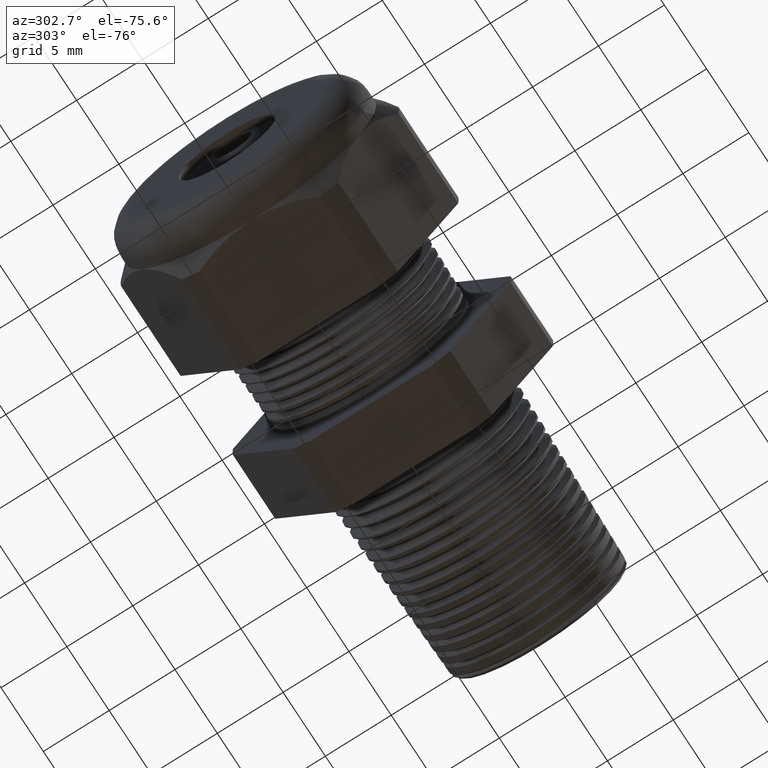
[diagram: clean part render]
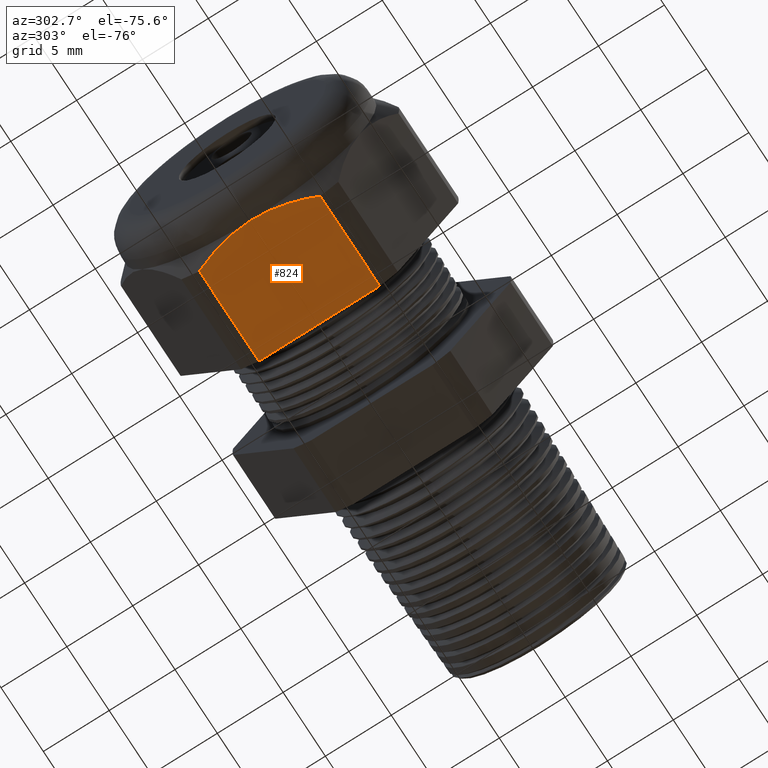
[diagram: same view with one face highlighted and labeled with its STEP entity id]
A machine part, auxiliary view. The second image highlights one B-rep face of the part: STEP entity #824.
In plain terms, the highlighted planar face has unit normal (0, 0, -1).
Its self-contained STEP definition (entity closure, byte-faithful):
#368 = VERTEX_POINT ( 'NONE', #2421 ) ;
#804 = VERTEX_POINT ( 'NONE', #3254 ) ;
#805 = ORIENTED_EDGE ( 'NONE', *, *, #806, .F. ) ;
#806 = EDGE_CURVE ( 'NONE', #807, #804, #3253, .T. ) ;
#807 = VERTEX_POINT ( 'NONE', #3249 ) ;
#808 = ORIENTED_EDGE ( 'NONE', *, *, #809, .F. ) ;
#809 = EDGE_CURVE ( 'NONE', #821, #807, #3312, .T. ) ;
#818 = VERTEX_POINT ( 'NONE', #3297 ) ;
#820 = EDGE_CURVE ( 'NONE', #821, #818, #3296, .T. ) ;
#821 = VERTEX_POINT ( 'NONE', #3292 ) ;
#824 = ADVANCED_FACE ( 'NONE', ( #3291 ), #3285, .T. ) ;
#825 = EDGE_LOOP ( 'NONE', ( #827, #828, #885, #805, #808 ) ) ;
#827 = ORIENTED_EDGE ( 'NONE', *, *, #820, .T. ) ;
#828 = ORIENTED_EDGE ( 'NONE', *, *, #884, .T. ) ;
#884 = EDGE_CURVE ( 'NONE', #818, #368, #3455, .T. ) ;
#885 = ORIENTED_EDGE ( 'NONE', *, *, #886, .T. ) ;
#886 = EDGE_CURVE ( 'NONE', #368, #804, #3448, .T. ) ;
#2421 = CARTESIAN_POINT ( 'NONE',  ( -1.069763779527559200, 0.0000000000000000000, -0.3750000000000001100 ) ) ;
#3249 = CARTESIAN_POINT ( 'NONE',  ( -0.7508661417322833900, 0.1806628420566884800, -0.3750000000000001100 ) ) ;
#3250 = DIRECTION ( 'NONE',  ( -1.000000000000000000, 0.0000000000000000000, 0.0000000000000000000 ) ) ;
#3251 = VECTOR ( 'NONE', #3250, 39.37007874015748100 ) ;
#3252 = CARTESIAN_POINT ( 'NONE',  ( 0.2800000000000000300, 0.1806628420566884800, -0.3750000000000001100 ) ) ;
#3253 = LINE ( 'NONE', #3252, #3251 ) ;
#3254 = CARTESIAN_POINT ( 'NONE',  ( -1.028513779527559200, 0.1806628420566884200, -0.3750000000000000600 ) ) ;
#3282 = DIRECTION ( 'NONE',  ( 0.0000000000000000000, 0.0000000000000000000, -1.000000000000000000 ) ) ;
#3283 = CARTESIAN_POINT ( 'NONE',  ( 0.2800000000000000300, 0.1806628420566883900, -0.3750000000000001100 ) ) ;
#3284 = AXIS2_PLACEMENT_3D ( 'NONE', #3283, #3282, #3340 ) ;
#3285 = PLANE ( 'NONE',  #3284 ) ;
#3291 = FACE_OUTER_BOUND ( 'NONE', #825, .T. ) ;
#3292 = CARTESIAN_POINT ( 'NONE',  ( -0.7508661417322833900, -0.1806628420566883900, -0.3750000000000001100 ) ) ;
#3293 = DIRECTION ( 'NONE',  ( -1.000000000000000000, 0.0000000000000000000, 0.0000000000000000000 ) ) ;
#3294 = VECTOR ( 'NONE', #3293, 39.37007874015748100 ) ;
#3295 = CARTESIAN_POINT ( 'NONE',  ( 0.2800000000000000300, -0.1806628420566883900, -0.3750000000000001100 ) ) ;
#3296 = LINE ( 'NONE', #3295, #3294 ) ;
#3297 = CARTESIAN_POINT ( 'NONE',  ( -1.028513779527559200, -0.1806628420566883700, -0.3750000000000001100 ) ) ;
#3309 = DIRECTION ( 'NONE',  ( 0.0000000000000000000, 1.000000000000000000, 0.0000000000000000000 ) ) ;
#3310 = VECTOR ( 'NONE', #3309, 39.37007874015748100 ) ;
#3311 = CARTESIAN_POINT ( 'NONE',  ( -0.7508661417322833900, 0.2999999999999999900, -0.3750000000000001100 ) ) ;
#3312 = LINE ( 'NONE', #3311, #3310 ) ;
#3340 = DIRECTION ( 'NONE',  ( -1.000000000000000000, 0.0000000000000000000, 0.0000000000000000000 ) ) ;
#3436 = CARTESIAN_POINT ( 'NONE',  ( -1.028513779527559200, 0.1806628420566884200, -0.3750000000000000600 ) ) ;
#3437 = CARTESIAN_POINT ( 'NONE',  ( -1.040859887633264900, 0.1522172168218788600, -0.3750000000000000600 ) ) ;
#3438 = CARTESIAN_POINT ( 'NONE',  ( -1.051355067212263800, 0.1224785947535363100, -0.3750000000000001100 ) ) ;
#3439 = CARTESIAN_POINT ( 'NONE',  ( -1.062160678549065200, 0.07729185397029268700, -0.3750000000000001100 ) ) ;
#3440 = CARTESIAN_POINT ( 'NONE',  ( -1.064967165678734700, 0.06207756443688126900, -0.3750000000000001100 ) ) ;
#3441 = CARTESIAN_POINT ( 'NONE',  ( -1.068769479952293800, 0.03130286613836874600, -0.3750000000000001100 ) ) ;
#3442 = CARTESIAN_POINT ( 'NONE',  ( -1.069763779527558700, 0.01568637131276648700, -0.3750000000000001100 ) ) ;
#3443 = CARTESIAN_POINT ( 'NONE',  ( -1.069763779527559200, 0.0000000000000000000, -0.3750000000000001100 ) ) ;
#3448 = B_SPLINE_CURVE_WITH_KNOTS ( 'NONE', 3,
 ( #3443, #3442, #3441, #3440, #3439, #3438, #3437, #3436 ),
 .UNSPECIFIED., .F., .F.,
 ( 4, 2, 2, 4 ),
 ( 0.01136407599362878800, 0.01253729531775339900, 0.01371051464187801100, 0.01605695329012723400 ),
 .UNSPECIFIED. ) ;
#3449 = CARTESIAN_POINT ( 'NONE',  ( -1.069763779527559200, 0.0000000000000000000, -0.3750000000000001100 ) ) ;
#3450 = CARTESIAN_POINT ( 'NONE',  ( -1.069763779527559000, -0.03141195411055319700, -0.3750000000000001100 ) ) ;
#3451 = CARTESIAN_POINT ( 'NONE',  ( -1.065781561248279100, -0.06212512060126249700, -0.3750000000000001100 ) ) ;
#3452 = CARTESIAN_POINT ( 'NONE',  ( -1.051374803848830400, -0.1224209746056496400, -0.3750000000000001700 ) ) ;
#3453 = CARTESIAN_POINT ( 'NONE',  ( -1.040864619919063900, -0.1522063135617430000, -0.3750000000000000600 ) ) ;
#3454 = CARTESIAN_POINT ( 'NONE',  ( -1.028513779527559200, -0.1806628420566883700, -0.3750000000000001100 ) ) ;
#3455 = B_SPLINE_CURVE_WITH_KNOTS ( 'NONE', 3,
 ( #3454, #3453, #3452, #3451, #3450, #3449 ),
 .UNSPECIFIED., .F., .F.,
 ( 4, 2, 4 ),
 ( 0.006665333265152965400, 0.009014704629390876300, 0.01136407599362878800 ),
 .UNSPECIFIED. ) ;